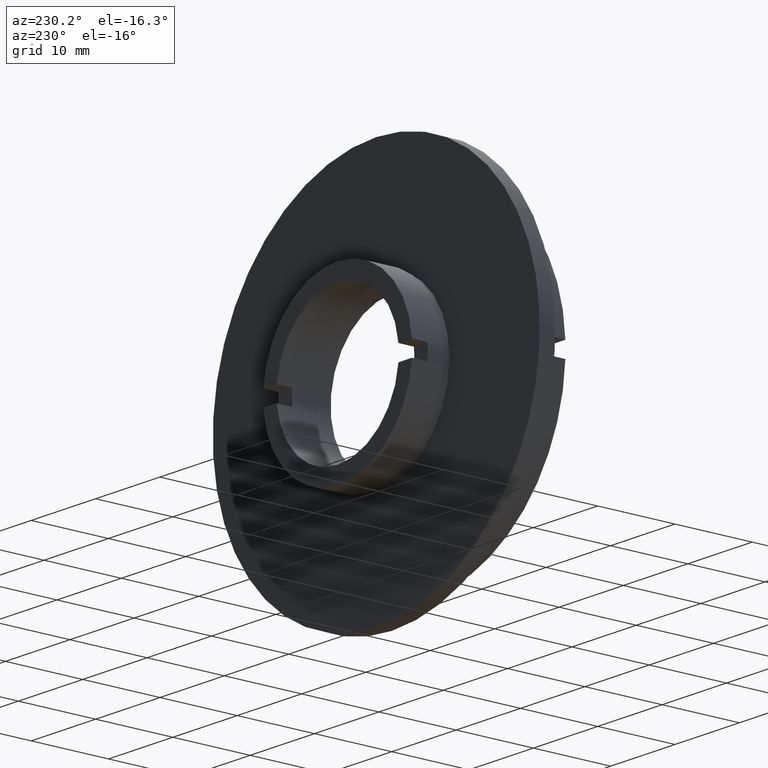
[diagram: clean part render]
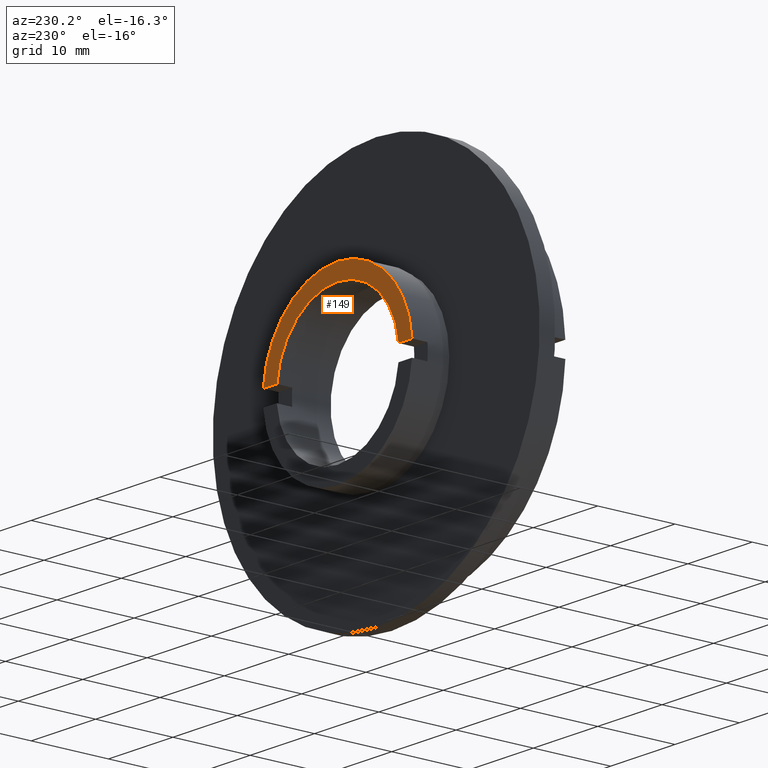
[diagram: same view with one face highlighted and labeled with its STEP entity id]
A machine part, auxiliary view. The second image highlights one B-rep face of the part: STEP entity #149.
In plain terms, the highlighted planar face has unit normal (-0, 1, 0).
Its self-contained STEP definition (entity closure, byte-faithful):
#1 = VECTOR ( 'NONE', #1109, 1000.000000000000000 ) ;
#2 = VERTEX_POINT ( 'NONE', #338 ) ;
#7 = ORIENTED_EDGE ( 'NONE', *, *, #262, .F. ) ;
#12 = CARTESIAN_POINT ( 'NONE',  ( -9.499999999999998200, 12.00000000000000000, 1.000000000000001600 ) ) ;
#17 = ORIENTED_EDGE ( 'NONE', *, *, #1262, .T. ) ;
#19 = CARTESIAN_POINT ( 'NONE',  ( 11.55681617055493000, 12.00000000000000000, 1.000000000000001600 ) ) ;
#34 = AXIS2_PLACEMENT_3D ( 'NONE', #1220, #310, #1206 ) ;
#47 = EDGE_CURVE ( 'NONE', #433, #2, #223, .T. ) ;
#81 = DIRECTION ( 'NONE',  ( -0.0000000000000000000, 1.000000000000000000, -0.0000000000000000000 ) ) ;
#105 = EDGE_CURVE ( 'NONE', #725, #596, #386, .T. ) ;
#149 = ADVANCED_FACE ( 'NONE', ( #409 ), #693, .T. ) ;
#180 = CIRCLE ( 'NONE', #34, 9.499999999999998200 ) ;
#184 = CARTESIAN_POINT ( 'NONE',  ( 0.0000000000000000000, 12.00000000000000000, 0.0000000000000000000 ) ) ;
#203 = EDGE_CURVE ( 'NONE', #380, #433, #180, .T. ) ;
#220 = CIRCLE ( 'NONE', #1108, 11.59999999999999800 ) ;
#223 = CIRCLE ( 'NONE', #395, 9.499999999999998200 ) ;
#262 = EDGE_CURVE ( 'NONE', #2, #660, #1310, .T. ) ;
#290 = DIRECTION ( 'NONE',  ( 1.000000000000000000, 0.0000000000000000000, 0.0000000000000000000 ) ) ;
#310 = DIRECTION ( 'NONE',  ( -0.0000000000000000000, 1.000000000000000000, -0.0000000000000000000 ) ) ;
#338 = CARTESIAN_POINT ( 'NONE',  ( 9.447221813845590800, 12.00000000000000000, 1.000000000000001600 ) ) ;
#368 = CARTESIAN_POINT ( 'NONE',  ( 0.0000000000000000000, 12.00000000000000000, 0.0000000000000000000 ) ) ;
#380 = VERTEX_POINT ( 'NONE', #833 ) ;
#386 = CIRCLE ( 'NONE', #706, 11.59999999999999800 ) ;
#395 = AXIS2_PLACEMENT_3D ( 'NONE', #368, #602, #925 ) ;
#409 = FACE_OUTER_BOUND ( 'NONE', #1061, .T. ) ;
#433 = VERTEX_POINT ( 'NONE', #869 ) ;
#509 = ORIENTED_EDGE ( 'NONE', *, *, #203, .F. ) ;
#590 = CARTESIAN_POINT ( 'NONE',  ( -9.499999999999998200, 12.00000000000000000, 0.0000000000000000000 ) ) ;
#596 = VERTEX_POINT ( 'NONE', #779 ) ;
#602 = DIRECTION ( 'NONE',  ( -0.0000000000000000000, 1.000000000000000000, -0.0000000000000000000 ) ) ;
#651 = DIRECTION ( 'NONE',  ( 0.0000000000000000000, 0.0000000000000000000, 1.000000000000000000 ) ) ;
#660 = VERTEX_POINT ( 'NONE', #19 ) ;
#680 = CARTESIAN_POINT ( 'NONE',  ( -9.499999999999998200, 12.00000000000000000, 1.000000000000001600 ) ) ;
#693 = PLANE ( 'NONE',  #1232 ) ;
#706 = AXIS2_PLACEMENT_3D ( 'NONE', #184, #81, #651 ) ;
#725 = VERTEX_POINT ( 'NONE', #1141 ) ;
#779 = CARTESIAN_POINT ( 'NONE',  ( 0.0000000000000000000, 12.00000000000000000, 11.59999999999999800 ) ) ;
#781 = ORIENTED_EDGE ( 'NONE', *, *, #105, .T. ) ;
#798 = DIRECTION ( 'NONE',  ( -0.0000000000000000000, 1.000000000000000000, 0.0000000000000000000 ) ) ;
#833 = CARTESIAN_POINT ( 'NONE',  ( -9.447221813845590800, 12.00000000000000000, 1.000000000000001600 ) ) ;
#869 = CARTESIAN_POINT ( 'NONE',  ( 0.0000000000000000000, 12.00000000000000000, 9.499999999999998200 ) ) ;
#925 = DIRECTION ( 'NONE',  ( 0.0000000000000000000, 0.0000000000000000000, 1.000000000000000000 ) ) ;
#1001 = DIRECTION ( 'NONE',  ( -0.0000000000000000000, 1.000000000000000000, -0.0000000000000000000 ) ) ;
#1008 = DIRECTION ( 'NONE',  ( 0.0000000000000000000, 0.0000000000000000000, 1.000000000000000000 ) ) ;
#1057 = DIRECTION ( 'NONE',  ( 0.0000000000000000000, 0.0000000000000000000, 1.000000000000000000 ) ) ;
#1061 = EDGE_LOOP ( 'NONE', ( #1334, #781, #17, #7, #1155, #509 ) ) ;
#1108 = AXIS2_PLACEMENT_3D ( 'NONE', #1145, #1001, #1008 ) ;
#1109 = DIRECTION ( 'NONE',  ( 1.000000000000000000, 0.0000000000000000000, 0.0000000000000000000 ) ) ;
#1141 = CARTESIAN_POINT ( 'NONE',  ( -11.55681617055493000, 12.00000000000000000, 1.000000000000001600 ) ) ;
#1145 = CARTESIAN_POINT ( 'NONE',  ( 0.0000000000000000000, 12.00000000000000000, 0.0000000000000000000 ) ) ;
#1155 = ORIENTED_EDGE ( 'NONE', *, *, #47, .F. ) ;
#1206 = DIRECTION ( 'NONE',  ( 0.0000000000000000000, 0.0000000000000000000, 1.000000000000000000 ) ) ;
#1220 = CARTESIAN_POINT ( 'NONE',  ( 0.0000000000000000000, 12.00000000000000000, 0.0000000000000000000 ) ) ;
#1232 = AXIS2_PLACEMENT_3D ( 'NONE', #590, #798, #1057 ) ;
#1245 = LINE ( 'NONE', #12, #1 ) ;
#1255 = VECTOR ( 'NONE', #290, 1000.000000000000000 ) ;
#1262 = EDGE_CURVE ( 'NONE', #596, #660, #220, .T. ) ;
#1268 = EDGE_CURVE ( 'NONE', #725, #380, #1245, .T. ) ;
#1310 = LINE ( 'NONE', #680, #1255 ) ;
#1334 = ORIENTED_EDGE ( 'NONE', *, *, #1268, .F. ) ;